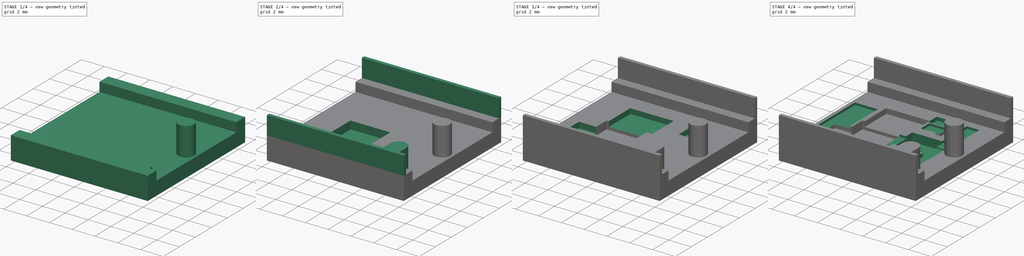
[diagram: build sequence overview — one tinted view per stage of 4, left to right]
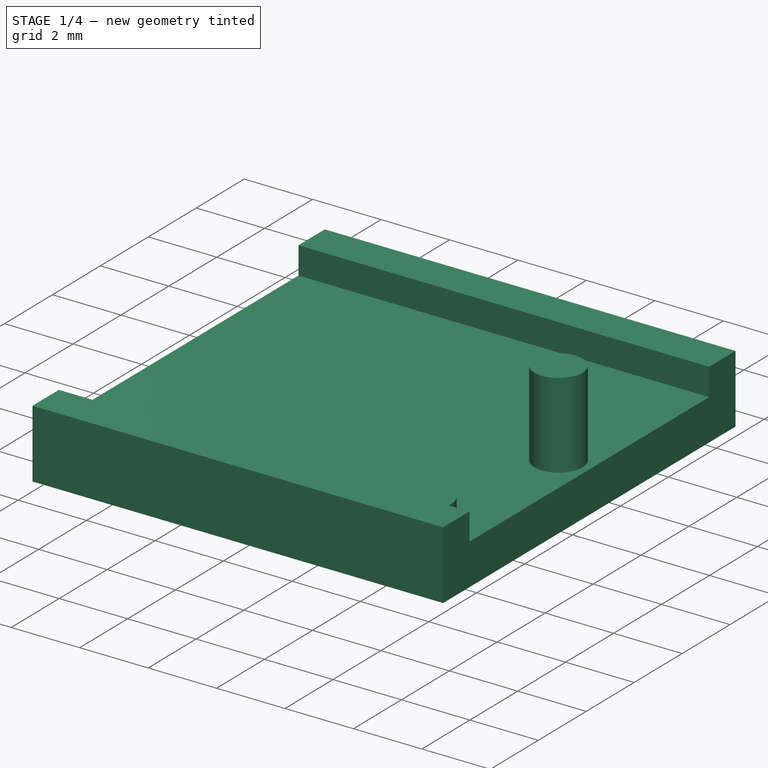
[diagram: stage 1 of 4 — iso view after this stage's code; geometry added in this stage tinted green]
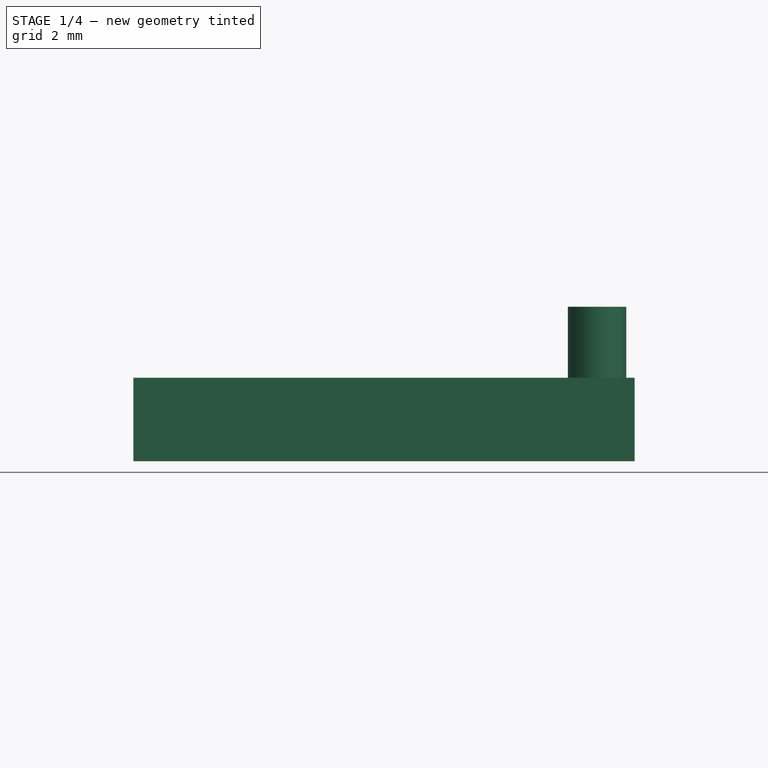
[diagram: stage 1 of 4 — front view after this stage's code; geometry added in this stage tinted green]
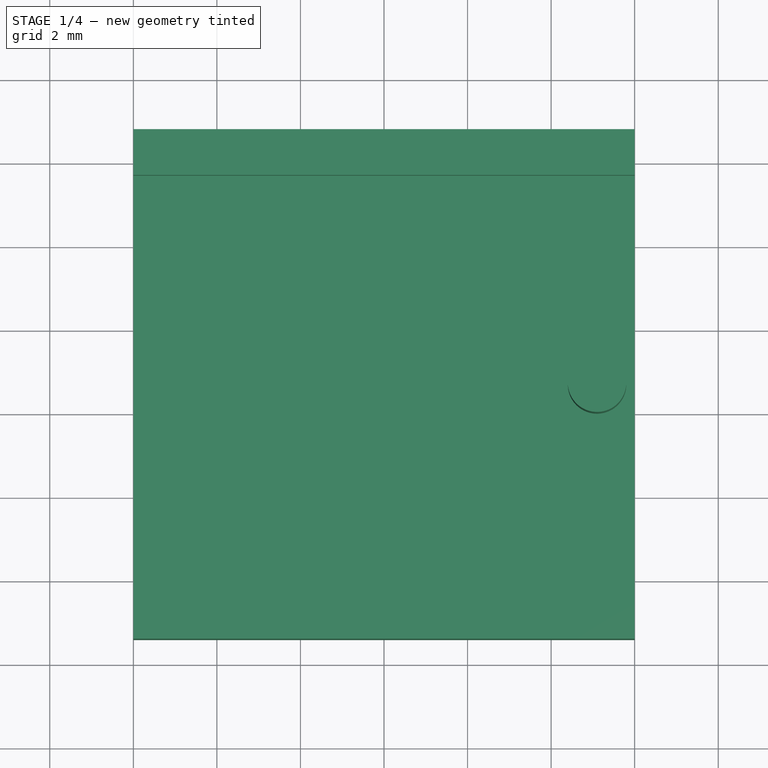
[diagram: stage 1 of 4 — top view after this stage's code; geometry added in this stage tinted green]
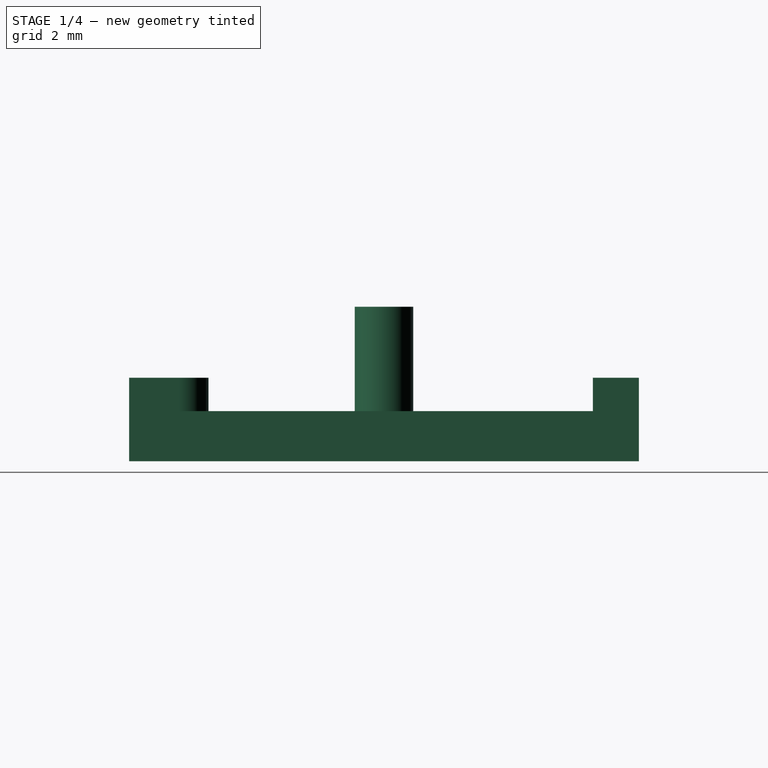
[diagram: stage 1 of 4 — right view after this stage's code; geometry added in this stage tinted green]
FCSTD DOCUMENT  (FreeCAD 0.18R16110 (Git))
Label: case-0.1
License: All rights reserved
LicenseURL: http://en.wikipedia.org/wiki/All_rights_reserved
objects: Part::Feature×41, Sketcher::SketchObject×15, PartDesign::Pocket×9, PartDesign::Pad×5, App::Part×4, PartDesign::Body×1
note: 85 computed .brp shape members not serialized (recipe doc carries the construction recipe); baked Part::Feature solids carry a one-line shape summary decoded from their .brp

FEATURE [Part::Feature] Pcb
  Placement = pos=(-148.5,98.5,0) rot=(0,0,1;0rad)
  shape: bbox 13 x 9.4 x 0.6 mm, 97 faces (baked)
FEATURE [Sketcher::SketchObject] PCB_Sketch
  sketch-geometry (95):
    g0: LineSegment StartX=-115.727 StartY=71.484 StartZ=0 EndX=-115.727 EndY=79.884 EndZ=0
    g1: LineSegment StartX=-102.827 StartY=73.334 StartZ=0 EndX=-102.817 EndY=73.454 EndZ=0
    g2: LineSegment StartX=-102.817 StartY=73.454 StartZ=0 EndX=-102.807 EndY=73.584 EndZ=0
    g3: LineSegment StartX=-102.727 StartY=75.284 StartZ=0 EndX=-102.727 EndY=75.414 EndZ=0
    g4: LineSegment StartX=-102.737 StartY=75.014 StartZ=0 EndX=-102.727 EndY=75.144 EndZ=0
    g5: LineSegment StartX=-103.057 StartY=71.604 StartZ=0 EndX=-103.037 EndY=71.704 EndZ=0
    g6: LineSegment StartX=-102.747 StartY=74.614 StartZ=0 EndX=-102.737 EndY=74.744 EndZ=0
    g7: LineSegment StartX=-102.967 StartY=72.094 StartZ=0 EndX=-102.957 EndY=72.194 EndZ=0
    g8: LineSegment StartX=-102.957 StartY=72.194 StartZ=0 EndX=-102.937 EndY=72.304 EndZ=0
    g9: LineSegment StartX=-103.077 StartY=71.524 StartZ=0 EndX=-103.057 EndY=71.604 EndZ=0
    g10: LineSegment StartX=-103.147 StartY=71.184 StartZ=0 EndX=-103.127 EndY=71.264 EndZ=0
    g11: LineSegment StartX=-102.897 StartY=72.624 StartZ=0 EndX=-102.887 EndY=72.744 EndZ=0
    g12: LineSegment StartX=-102.737 StartY=74.874 StartZ=0 EndX=-102.737 EndY=75.014 EndZ=0
    g13: LineSegment StartX=-103.127 StartY=71.264 StartZ=0 EndX=-103.107 EndY=71.344 EndZ=0
    g14: LineSegment StartX=-102.867 StartY=72.854 StartZ=0 EndX=-102.857 EndY=72.974 EndZ=0
    g15: LineSegment StartX=-103.107 StartY=71.344 StartZ=0 EndX=-103.097 EndY=71.434 EndZ=0
    g16: LineSegment StartX=-102.887 StartY=72.744 StartZ=0 EndX=-102.867 EndY=72.854 EndZ=0
    g17: LineSegment StartX=-102.727 StartY=75.414 StartZ=0 EndX=-102.727 EndY=75.554 EndZ=0
    g18: LineSegment StartX=-102.837 StartY=73.214 StartZ=0 EndX=-102.827 EndY=73.334 EndZ=0
    g19: LineSegment StartX=-102.777 StartY=73.954 StartZ=0 EndX=-102.767 EndY=74.084 EndZ=0
    g20: LineSegment StartX=-103.007 StartY=71.894 StartZ=0 EndX=-102.987 EndY=71.994 EndZ=0
    g21: LineSegment StartX=-102.787 StartY=73.834 StartZ=0 EndX=-102.777 EndY=73.954 EndZ=0
    g22: LineSegment StartX=-102.767 StartY=74.084 StartZ=0 EndX=-102.767 EndY=74.214 EndZ=0
    g23: LineSegment StartX=-102.797 StartY=73.704 StartZ=0 EndX=-102.787 EndY=73.834 EndZ=0
    g24: LineSegment StartX=-102.727 StartY=75.554 StartZ=0 EndX=-102.727 EndY=75.684 EndZ=0
    g25: LineSegment StartX=-102.727 StartY=75.144 StartZ=0 EndX=-102.727 EndY=75.284 EndZ=0
    g26: LineSegment StartX=-102.937 StartY=79.064 StartZ=0 EndX=-102.957 EndY=79.174 EndZ=0
    g27: LineSegment StartX=-102.807 StartY=73.584 StartZ=0 EndX=-102.797 EndY=73.704 EndZ=0
    g28: LineSegment StartX=-103.037 StartY=71.704 StartZ=0 EndX=-103.017 EndY=71.794 EndZ=0
    g29: LineSegment StartX=-102.937 StartY=72.304 StartZ=0 EndX=-102.927 EndY=72.404 EndZ=0
    g30: LineSegment StartX=-102.757 StartY=74.344 StartZ=0 EndX=-102.747 EndY=74.474 EndZ=0
    g31: LineSegment StartX=-103.017 StartY=71.794 StartZ=0 EndX=-103.007 EndY=71.894 EndZ=0
    g32: LineSegment StartX=-102.907 StartY=72.514 StartZ=0 EndX=-102.897 EndY=72.624 EndZ=0
    g33: LineSegment StartX=-102.857 StartY=72.974 StartZ=0 EndX=-102.847 EndY=73.094 EndZ=0
    g34: LineSegment StartX=-102.747 StartY=74.474 StartZ=0 EndX=-102.747 EndY=74.614 EndZ=0
    g35: LineSegment StartX=-102.927 StartY=72.404 StartZ=0 EndX=-102.907 EndY=72.514 EndZ=0
    g36: LineSegment StartX=-102.987 StartY=71.994 StartZ=0 EndX=-102.967 EndY=72.094 EndZ=0
    g37: LineSegment StartX=-102.737 StartY=74.744 StartZ=0 EndX=-102.737 EndY=74.874 EndZ=0
    g38: LineSegment StartX=-102.847 StartY=73.094 StartZ=0 EndX=-102.837 EndY=73.214 EndZ=0
    g39: LineSegment StartX=-102.767 StartY=74.214 StartZ=0 EndX=-102.757 EndY=74.344 EndZ=0
    g40: LineSegment StartX=-103.097 StartY=71.434 StartZ=0 EndX=-103.077 EndY=71.524 EndZ=0
    g41: LineSegment StartX=-103.017 StartY=79.574 StartZ=0 EndX=-103.037 EndY=79.664 EndZ=0
    g42: LineSegment StartX=-103.057 StartY=79.764 StartZ=0 EndX=-103.077 EndY=79.844 EndZ=0
    g43: LineSegment StartX=-103.167 StartY=71.114 StartZ=0 EndX=-103.147 EndY=71.184 EndZ=0
    g44: LineSegment StartX=-103.127 StartY=80.104 StartZ=0 EndX=-103.147 EndY=80.184 EndZ=0
    g45: LineSegment StartX=-103.197 StartY=71.034 StartZ=0 EndX=-103.167 EndY=71.114 EndZ=0
    g46: LineSegment StartX=-102.907 StartY=78.854 StartZ=0 EndX=-102.927 EndY=78.964 EndZ=0
    g47: LineSegment StartX=-102.957 StartY=79.174 StartZ=0 EndX=-102.967 EndY=79.274 EndZ=0
    g48: LineSegment StartX=-102.777 StartY=77.414 StartZ=0 EndX=-102.787 EndY=77.534 EndZ=0
    g49: LineSegment StartX=-103.227 StartY=70.984 StartZ=0 EndX=-103.197 EndY=71.034 EndZ=0
    g50: LineSegment StartX=-102.737 StartY=76.624 StartZ=0 EndX=-102.747 EndY=76.754 EndZ=0
    g51: LineSegment StartX=-102.727 StartY=75.814 StartZ=0 EndX=-102.727 EndY=75.954 EndZ=0
    g52: LineSegment StartX=-103.197 StartY=80.334 StartZ=0 EndX=-103.227 EndY=80.384 EndZ=0
    g53: LineSegment StartX=-102.807 StartY=77.784 StartZ=0 EndX=-102.817 EndY=77.914 EndZ=0
    g54: LineSegment StartX=-102.727 StartY=76.084 StartZ=0 EndX=-102.727 EndY=76.224 EndZ=0
    g55: LineSegment StartX=-102.897 StartY=78.744 StartZ=0 EndX=-102.907 EndY=78.854 EndZ=0
    g56: LineSegment StartX=-102.767 StartY=77.284 StartZ=0 EndX=-102.777 EndY=77.414 EndZ=0
    g57: LineSegment StartX=-103.037 StartY=79.664 StartZ=0 EndX=-103.057 EndY=79.764 EndZ=0
    g58: LineSegment StartX=-102.887 StartY=78.624 StartZ=0 EndX=-102.897 EndY=78.744 EndZ=0
    g59: LineSegment StartX=-102.757 StartY=77.024 StartZ=0 EndX=-102.767 EndY=77.154 EndZ=0
    g60: LineSegment StartX=-103.167 StartY=80.254 StartZ=0 EndX=-103.197 EndY=80.334 EndZ=0
    g61: LineSegment StartX=-102.837 StartY=78.154 StartZ=0 EndX=-102.847 EndY=78.274 EndZ=0
    g62: LineSegment StartX=-102.727 StartY=75.954 StartZ=0 EndX=-102.727 EndY=76.084 EndZ=0
    g63: LineSegment StartX=-102.747 StartY=76.754 StartZ=0 EndX=-102.747 EndY=76.894 EndZ=0
    g64: LineSegment StartX=-102.747 StartY=76.894 StartZ=0 EndX=-102.757 EndY=77.024 EndZ=0
    g65: LineSegment StartX=-103.147 StartY=80.184 StartZ=0 EndX=-103.167 EndY=80.254 EndZ=0
    g66: LineSegment StartX=-102.767 StartY=77.154 StartZ=0 EndX=-102.767 EndY=77.284 EndZ=0
    g67: LineSegment StartX=-103.097 StartY=79.934 StartZ=0 EndX=-103.107 EndY=80.024 EndZ=0
    g68: LineSegment StartX=-102.727 StartY=75.684 StartZ=0 EndX=-102.727 EndY=75.814 EndZ=0
    g69: LineSegment StartX=-102.967 StartY=79.274 StartZ=0 EndX=-102.987 EndY=79.374 EndZ=0
    g70: LineSegment StartX=-102.867 StartY=78.514 StartZ=0 EndX=-102.887 EndY=78.624 EndZ=0
    g71: LineSegment StartX=-102.827 StartY=78.034 StartZ=0 EndX=-102.837 EndY=78.154 EndZ=0
    g72: LineSegment StartX=-102.857 StartY=78.394 StartZ=0 EndX=-102.867 EndY=78.514 EndZ=0
    g73: LineSegment StartX=-102.817 StartY=77.914 StartZ=0 EndX=-102.827 EndY=78.034 EndZ=0
    g74: LineSegment StartX=-102.727 StartY=76.224 StartZ=0 EndX=-102.737 EndY=76.354 EndZ=0
    g75: LineSegment StartX=-103.077 StartY=79.844 StartZ=0 EndX=-103.097 EndY=79.934 EndZ=0
    g76: LineSegment StartX=-103.107 StartY=80.024 StartZ=0 EndX=-103.127 EndY=80.104 EndZ=0
    g77: LineSegment StartX=-103.007 StartY=79.474 StartZ=0 EndX=-103.017 EndY=79.574 EndZ=0
    g78: LineSegment StartX=-102.987 StartY=79.374 StartZ=0 EndX=-103.007 EndY=79.474 EndZ=0
    g79: LineSegment StartX=-102.737 StartY=76.494 StartZ=0 EndX=-102.737 EndY=76.624 EndZ=0
    g80: LineSegment StartX=-102.787 StartY=77.534 StartZ=0 EndX=-102.797 EndY=77.664 EndZ=0
    g81: LineSegment StartX=-102.797 StartY=77.664 StartZ=0 EndX=-102.807 EndY=77.784 EndZ=0
    g82: LineSegment StartX=-102.737 StartY=76.354 StartZ=0 EndX=-102.737 EndY=76.494 EndZ=0
    g83: LineSegment StartX=-102.927 StartY=78.964 StartZ=0 EndX=-102.937 EndY=79.064 EndZ=0
    g84: LineSegment StartX=-102.847 StartY=78.274 StartZ=0 EndX=-102.857 EndY=78.394 EndZ=0
    g85: LineSegment StartX=-115.227 StartY=80.384 StartZ=0 EndX=-103.227 EndY=80.384 EndZ=0
    g86: LineSegment StartX=-104.252 StartY=70.984 StartZ=0 EndX=-103.227 EndY=70.984 EndZ=0
    g87: LineSegment StartX=-103.427 StartY=76.534 StartZ=0 EndX=-103.427 EndY=74.834 EndZ=0
    g88: LineSegment StartX=-115.227 StartY=70.984 StartZ=0 EndX=-105.852 EndY=70.984 EndZ=0
    g89: ArcOfCircle CenterX=-115.227 CenterY=71.484 CenterZ=0 NormalX=0 NormalY=0 NormalZ=1 AngleXU=0 Radius=0.5 StartAngle=3.14159 EndAngle=4.71239
    g90: ArcOfCircle CenterX=-104.027 CenterY=74.834 CenterZ=0 NormalX=0 NormalY=0 NormalZ=1 AngleXU=0 Radius=0.6 StartAngle=3.14159 EndAngle=6.28319
    g91: ArcOfCircle CenterX=-104.027 CenterY=76.534 CenterZ=0 NormalX=0 NormalY=0 NormalZ=1 AngleXU=0 Radius=0.6 StartAngle=0 EndAngle=3.14159
    g92: ArcOfCircle CenterX=-104.627 CenterY=75.684 CenterZ=0 NormalX=0 NormalY=0 NormalZ=1 AngleXU=0 Radius=0.85 StartAngle=1.5708 EndAngle=4.71239
    g93: ArcOfCircle CenterX=-105.052 CenterY=70.984 CenterZ=0 NormalX=0 NormalY=0 NormalZ=1 AngleXU=0 Radius=0.8 StartAngle=0 EndAngle=3.14159
    g94: ArcOfCircle CenterX=-115.227 CenterY=79.884 CenterZ=0 NormalX=0 NormalY=0 NormalZ=1 AngleXU=0 Radius=0.5 StartAngle=1.5708 EndAngle=3.14159
  constraints (94):
    c: Coincident(g0,g89)
    c: Coincident(g0,g94)
    c: Coincident(g89,g88)
    c: Coincident(g94,g85)
    c: Coincident(g88,g93)
    c: Coincident(g90,g92)
    c: Coincident(g92,g91)
    c: Coincident(g86,g93)
    c: Coincident(g90,g87)
    c: Coincident(g87,g91)
    c: Coincident(g49,g86)
    c: Coincident(g85,g52)
    c: Coincident(g45,g49)
    c: Coincident(g52,g60)
    c: Coincident(g43,g45)
    c: Coincident(g60,g65)
    c: Coincident(g43,g10)
    c: Coincident(g44,g65)
    c: Coincident(g10,g13)
    c: Coincident(g44,g76)
    c: Coincident(g15,g13)
    c: Coincident(g40,g15)
    c: Coincident(g67,g75)
    c: Coincident(g67,g76)
    c: Coincident(g9,g40)
    c: Coincident(g75,g42)
    c: Coincident(g9,g5)
    c: Coincident(g57,g42)
    c: Coincident(g28,g5)
    c: Coincident(g57,g41)
    c: Coincident(g28,g31)
    c: Coincident(g20,g31)
    c: Coincident(g78,g77)
    c: Coincident(g77,g41)
    c: Coincident(g36,g20)
    c: Coincident(g78,g69)
    c: Coincident(g36,g7)
    c: Coincident(g47,g69)
    c: Coincident(g7,g8)
    c: Coincident(g47,g26)
    c: Coincident(g8,g29)
    c: Coincident(g83,g26)
    c: Coincident(g29,g35)
    c: Coincident(g46,g83)
    c: Coincident(g32,g35)
    c: Coincident(g46,g55)
    c: Coincident(g32,g11)
    c: Coincident(g16,g11)
    c: Coincident(g58,g70)
    c: Coincident(g55,g58)
    c: Coincident(g16,g14)
    c: Coincident(g14,g33)
    c: Coincident(g38,g33)
    c: Coincident(g72,g84)
    c: Coincident(g84,g61)
    c: Coincident(g38,g18)
    c: Coincident(g71,g61)
    c: Coincident(g1,g18)
    c: Coincident(g2,g1)
    c: Coincident(g73,g53)
    c: Coincident(g71,g73)
    c: Coincident(g27,g2)
    c: Coincident(g53,g81)
    c: Coincident(g23,g27)
    c: Coincident(g21,g23)
    c: Coincident(g48,g80)
    c: Coincident(g81,g80)
    c: Coincident(g19,g21)
    c: Coincident(g56,g48)
    c: Coincident(g19,g22)
    c: Coincident(g22,g39)
    c: Coincident(g39,g30)
    c: Coincident(g59,g64)
    c: Coincident(g66,g59)
    c: Coincident(g66,g56)
    c: Coincident(g34,g30)
    c: Coincident(g34,g6)
    c: Coincident(g63,g50)
    c: Coincident(g63,g64)
    c: Coincident(g37,g6)
    c: Coincident(g37,g12)
    c: Coincident(g4,g12)
    c: Coincident(g25,g4)
    c: Coincident(g25,g3)
    c: Coincident(g3,g17)
    c: Coincident(g24,g17)
    c: Coincident(g68,g24)
    c: Coincident(g51,g68)
    c: Coincident(g51,g62)
    c: Coincident(g62,g54)
    c: Coincident(g74,g54)
    c: Coincident(g82,g74)
    c: Coincident(g79,g82)
    c: Coincident(g79,g50)
FEATURE [App::Part] Board_Geoms
  Group = -> [Pcb,PCB_Sketch]
  Origin = -> Origin
FEATURE [Part::Feature] Shape  label="U2_X2SON-DQN0004A_5DC58CFF"
  Placement = pos=(-112.97,72.45,-0.6) rot=(0.57735,0.57735,-0.57735;4.18879rad)
  shape: bbox 1 x 1 x 0.36 mm, 131 faces, 6 solids (baked)
FEATURE [Part::Feature] Shape001  label="U1_X2SON-DQN0004A_5F5B4CDF"
  Placement = pos=(-108.15,73.094,-0.6) rot=(-0.57735,0.57735,-0.57735;2.0944rad)
  shape: bbox 1 x 1 x 0.36 mm, 131 faces, 6 solids (baked)
FEATURE [Part::Feature] Shape002  label="U10_LED-UHD1110-FKA_5DC5D065"
  Placement = pos=(-106.927,78.23,-0.6) rot=(-1,0,0;1.5708rad)
  shape: bbox 1 x 1 x 0.7 mm, 67 faces, 9 solids (baked)
FEATURE [Part::Feature] Shape003  label="U4_(Unsaved)_5DEEC34D"
  Placement = pos=(-111.102,77.739,-0.6) rot=(1,0,0;3.14159rad)
  shape: bbox 3 x 2 x 0.45 mm, 6 faces (baked)
FEATURE [Part::Feature] Shape004  label="Q3_TRANS_RV1C001Z_ROM_5DF3B6C3"
  Placement = pos=(-108.525,79.53,-0.6) rot=(0,1,0;3.14159rad)
  shape: bbox 0.812 x 0.61 x 0.387 mm, 27 faces, 5 solids (baked)
FEATURE [Part::Feature] Shape005  label="Q1_TRANS_RV1C001Z_ROM_5F9A5F46"
  Placement = pos=(-106,75.525,-0.6) rot=(0.707107,0.707107,0;3.14159rad)
  shape: bbox 0.61 x 0.812 x 0.387 mm, 27 faces, 5 solids (baked)
FEATURE [Part::Feature] Shape006  label="Q2_TRANS_RV1C001Z_ROM_5DF9400C"
  Placement = pos=(-106,74.35,-0.6) rot=(0.707107,0.707107,0;3.14159rad)
  shape: bbox 0.61 x 0.812 x 0.387 mm, 27 faces, 5 solids (baked)
FEATURE [Part::Feature] Shape007  label="C4_C_0201_0603Metric_5FB65D3D"
  Placement = pos=(-111.35,73.03,-0.6) rot=(1,0,0;3.14159rad)
  shape: bbox 0.6 x 0.3 x 0.3 mm, 28 faces (baked)
FEATURE [Part::Feature] Shape008  label="U3_SOT_323_SC_70_5FC7136C"
  Placement = pos=(-107.8,75.65,-0.6) rot=(-0.707107,0.707107,0;3.14159rad)
  shape: bbox 2 x 2 x 1.05 mm, 76 faces (baked)
FEATURE [Part::Feature] Shape009  label="C15_C_0201_0603Metric_5FB66156"
  Placement = pos=(-109.95,73.03,-0.6) rot=(1,0,0;3.14159rad)
  shape: bbox 0.6 x 0.3 x 0.3 mm, 28 faces (baked)
FEATURE [Part::Feature] Shape010  label="XTAL1_ECS-.327-12.5-1210-TR_5DF79E47"
  Placement = pos=(-113.852,74.2075,-0.6) rot=(-0.57735,-0.57735,0.57735;2.0944rad)
  shape: bbox 1 x 1.2 x 0.35 mm, 95 faces, 5 solids (baked)
FEATURE [Part::Feature] Shape011  label="IC1_(Unsaved)_5F5BD09C"
  Placement = pos=(-112.779,76.09,-0.6) rot=(-1,0,0;1.5708rad)
  shape: bbox 2.656 x 2.422 x 0.352 mm, 6 faces (baked)
FEATURE [Part::Feature] Shape012  label="C7_C_0201_0603Metric_5DDDC17D"
  Placement = pos=(-109.95,72.33,-0.6) rot=(0,1,0;3.14159rad)
  shape: bbox 0.6 x 0.3 x 0.3 mm, 28 faces (baked)
FEATURE [Part::Feature] Shape013  label="R1_R_0201_5DC5A0F0"
  Placement = pos=(-113.95,76.23,-0.6) rot=(0,1,0;3.14159rad)
  shape: bbox 0.63 x 0.33 x 0.23 mm, 28 faces (baked)
FEATURE [Part::Feature] Shape014  label="C14_C_0201_0603Metric_5F9A3241"
  Placement = pos=(-115.05,73.63,-0.6) rot=(0.707107,0.707107,0;3.14159rad)
  shape: bbox 0.3 x 0.6 x 0.3 mm, 28 faces (baked)
FEATURE [Part::Feature] Shape015  label="C13_C_0201_0603Metric_5DF97F66"
  Placement = pos=(-115.04,75.03,-0.6) rot=(0.707107,0.707107,0;3.14159rad)
  shape: bbox 0.3 x 0.6 x 0.3 mm, 28 faces (baked)
FEATURE [Part::Feature] Shape016  label="R18_R_0201_5DEE54FD"
  Placement = pos=(-105.95,77.33,-0.6) rot=(0.707107,0.707107,0;3.14159rad)
  shape: bbox 0.33 x 0.63 x 0.23 mm, 28 faces (baked)
FEATURE [Part::Feature] Shape017  label="R17_R_0201_5DF3BC3D"
  Placement = pos=(-105.95,78.73,-0.6) rot=(-0.707107,0.707107,0;3.14159rad)
  shape: bbox 0.33 x 0.63 x 0.23 mm, 28 faces (baked)
FEATURE [Part::Feature] Shape018  label="R16_R_0201_5DF3BCFD"
  Placement = pos=(-107.95,78.33,-0.6) rot=(-0.707107,0.707107,0;3.14159rad)
  shape: bbox 0.33 x 0.63 x 0.23 mm, 28 faces (baked)
FEATURE [Part::Feature] Shape019  label="R12_R_0201_5DF3BC6D"
  Placement = pos=(-114.012,77.63,-0.6) rot=(0,1,0;3.14159rad)
  shape: bbox 0.63 x 0.33 x 0.23 mm, 28 faces (baked)
FEATURE [Part::Feature] Shape020  label="R11_R_0201_5DF3BC9D"
  Placement = pos=(-114.012,78.33,-0.6) rot=(0,1,0;3.14159rad)
  shape: bbox 0.63 x 0.33 x 0.23 mm, 28 faces (baked)
FEATURE [Part::Feature] Shape021  label="R9_R_0201_5DF3BCCD"
  Placement = pos=(-114.012,76.93,-0.6) rot=(0,1,0;3.14159rad)
  shape: bbox 0.63 x 0.33 x 0.23 mm, 28 faces (baked)
FEATURE [Part::Feature] Shape022  label="R5_R_0201_5F5B4C73"
  Placement = pos=(-106.95,71.98,-0.6) rot=(1,0,0;3.14159rad)
  shape: bbox 0.63 x 0.33 x 0.23 mm, 28 faces (baked)
FEATURE [Part::Feature] Shape023  label="R2_R_0201_5DDDC491"
  Placement = pos=(-109.95,71.63,-0.6) rot=(0,1,0;3.14159rad)
  shape: bbox 0.63 x 0.33 x 0.23 mm, 28 faces (baked)
FEATURE [Part::Feature] Shape024  label="D7_L_0201_0603Metric_5DC58C89"
  Placement = pos=(-114.982,78.085,-0.6) rot=(0.707107,0.707107,0;3.14159rad)
  shape: bbox 0.3 x 0.6 x 0.3 mm, 28 faces (baked)
FEATURE [Part::Feature] Shape025  label="D6_L_0201_0603Metric_5DF818F3"
  Placement = pos=(-114.972,76.465,-0.6) rot=(-0.707107,0.707107,0;3.14159rad)
  shape: bbox 0.3 x 0.6 x 0.3 mm, 28 faces (baked)
FEATURE [Part::Feature] Shape026  label="D5_L_0201_0603Metric_5F5BD1CB"
  Placement = pos=(-114.95,72.365,-0.6) rot=(-0.707107,0.707107,0;3.14159rad)
  shape: bbox 0.3 x 0.6 x 0.3 mm, 28 faces (baked)
FEATURE [Part::Feature] Shape027  label="D4_L_0201_0603Metric_5DEE9B1D"
  Placement = pos=(-106,72.18,-0.6) rot=(0.707107,0.707107,0;3.14159rad)
  shape: bbox 0.3 x 0.6 x 0.3 mm, 28 faces (baked)
FEATURE [Part::Feature] Shape028  label="D3_L_0201_0603Metric_5DC59080"
  Placement = pos=(-105.95,76.35,-0.6) rot=(0,1,0;3.14159rad)
  shape: bbox 0.6 x 0.3 x 0.3 mm, 28 faces (baked)
FEATURE [Part::Feature] Shape029  label="D2_L_0201_0603Metric_5DC59071"
  Placement = pos=(-106,73.23,-0.6) rot=(-0.707107,0.707107,0;3.14159rad)
  shape: bbox 0.3 x 0.6 x 0.3 mm, 28 faces (baked)
FEATURE [Part::Feature] Shape030  label="D1_L_0201_0603Metric_5F5BBC78"
  Placement = pos=(-105.95,79.68,-0.6) rot=(0,1,0;3.14159rad)
  shape: bbox 0.6 x 0.3 x 0.3 mm, 28 faces (baked)
FEATURE [Part::Feature] Shape031  label="C11_C_0201_0603Metric_5F5B4CA3"
  Placement = pos=(-108.35,71.98,-0.6) rot=(1,0,0;3.14159rad)
  shape: bbox 0.6 x 0.3 x 0.3 mm, 28 faces (baked)
FEATURE [Part::Feature] Shape032  label="C10_C_0201_0603Metric_5DEFCC06"
  Placement = pos=(-109.5,75.58,-0.6) rot=(0.707107,0.707107,0;3.14159rad)
  shape: bbox 0.3 x 0.6 x 0.3 mm, 28 faces (baked)
FEATURE [Part::Feature] Shape033  label="C9_C_0201_0603Metric_5DD5522E"
  Placement = pos=(-111.35,72.33,-0.6) rot=(1,0,0;3.14159rad)
  shape: bbox 0.6 x 0.3 x 0.3 mm, 28 faces (baked)
FEATURE [Part::Feature] Shape034  label="C8_C_0201_0603Metric_5DEFCCB7"
  Placement = pos=(-109.5,74.18,-0.6) rot=(-0.707107,0.707107,0;3.14159rad)
  shape: bbox 0.3 x 0.6 x 0.3 mm, 28 faces (baked)
FEATURE [Part::Feature] Shape035  label="C6_C_0201_0603Metric_5DEFCBD0"
  Placement = pos=(-111.35,71.63,-0.6) rot=(1,0,0;3.14159rad)
  shape: bbox 0.6 x 0.3 x 0.3 mm, 28 faces (baked)
FEATURE [Part::Feature] Shape036  label="C5_C_0201_0603Metric_5DF7B985"
  Placement = pos=(-108.65,78.33,-0.6) rot=(-0.707107,0.707107,0;3.14159rad)
  shape: bbox 0.3 x 0.6 x 0.3 mm, 28 faces (baked)
FEATURE [Part::Feature] Shape037  label="C3_C_0201_0603Metric_5DEFCE4F"
  Placement = pos=(-113.95,75.53,-0.6) rot=(0,1,0;3.14159rad)
  shape: bbox 0.6 x 0.3 x 0.3 mm, 28 faces (baked)
FEATURE [Part::Feature] Shape038  label="C2_C_0201_0603Metric_5F5B4C43"
  Placement = pos=(-106.85,73.03,-0.6) rot=(0.707107,0.707107,0;3.14159rad)
  shape: bbox 0.3 x 0.6 x 0.3 mm, 28 faces (baked)
FEATURE [Part::Feature] Shape039  label="C1_C_0201_0603Metric_5DDDBFF4"
  Placement = pos=(-114.3,72.48,-0.6) rot=(-0.707107,0.707107,0;3.14159rad)
  shape: bbox 0.3 x 0.6 x 0.3 mm, 28 faces (baked)
FEATURE [App::Part] Bot
  Group = -> [Shape,Shape001,Shape002,Shape003,Shape004,Shape005,Shape006,Shape007,Shape008,Shape009,Shape010,Shape011,Shape012,Shape013,Shape014,Shape015,Shape016,Shape017,Shape018,Shape019,Shape020,Shape021,Shape022,Shape023,Shape024,Shape025,Shape026,Shape027,Shape028,Shape029,Shape030,Shape031,Shape032,Shape033,Shape034,Shape035,Shape036,Shape037,Shape038,Shape039]
  Origin = -> Origin004
FEATURE [App::Part] Step_Models
  Group = -> [Bot]
  Origin = -> Origin002
FEATURE [App::Part] Board  label="qomu-board"
  Group = -> [Board_Geoms,Step_Models]
  Origin = -> Origin001
  Placement = pos=(115.7,-71,0) rot=(0,0,1;0rad)
FEATURE [Sketcher::SketchObject] Sketch017  label="Case Body Sketch"
  MapMode = 5
  Support = -> [XY_Plane015]
  sketch-geometry (4):
    g0: LineSegment StartX=0 StartY=10.8 StartZ=0 EndX=12 EndY=10.8 EndZ=0
    g1: LineSegment StartX=12 StartY=10.8 StartZ=0 EndX=12 EndY=-1.4 EndZ=0
    g2: LineSegment StartX=12 StartY=-1.4 StartZ=0 EndX=0 EndY=-1.4 EndZ=0
    g3: LineSegment StartX=0 StartY=-1.4 StartZ=0 EndX=0 EndY=10.8 EndZ=0
  constraints (12):
    c: Coincident(g0,g1)
    c: Coincident(g1,g2)
    c: Coincident(g2,g3)
    c: Coincident(g3,g0)
    c: Horizontal(g0)
    c: Horizontal(g2)
    c: Vertical(g1)
    c: Vertical(g3)
    c: DistanceX(g0,g0) = 12
    c: DistanceY(g3,g3) = 12.2
    c: DistanceX(g-1,g2) = 0
    c: DistanceY(g2,g-1) = 1.4
FEATURE [PartDesign::Pad] Pad013  label="Case Body Pad"
  Length = 2
  Length2 = 100
  Profile = -> Sketch017
  Reversed = true
  Type = 0
FEATURE [Sketcher::SketchObject] Sketch018  label="PCB Pocket Sketch"
  MapMode = 5
  Support = -> [Pad013]
  sketch-geometry (4):
    g0: LineSegment StartX=0 StartY=9.7 StartZ=0 EndX=13 EndY=9.7 EndZ=0
    g1: LineSegment StartX=13 StartY=9.7 StartZ=0 EndX=13 EndY=-0.3 EndZ=0
    g2: LineSegment StartX=13 StartY=-0.3 StartZ=0 EndX=0 EndY=-0.3 EndZ=0
    g3: LineSegment StartX=0 StartY=-0.3 StartZ=0 EndX=0 EndY=9.7 EndZ=0
  constraints (12):
    c: Coincident(g0,g1)
    c: Coincident(g1,g2)
    c: Coincident(g2,g3)
    c: Coincident(g3,g0)
    c: Horizontal(g0)
    c: Horizontal(g2)
    c: Vertical(g1)
    c: Vertical(g3)
    c: DistanceX(g0,g0) = 13
    c: DistanceY(g1,g1) = 10
    c: DistanceX(g-1,g2) = 0
    c: DistanceY(g2,g-1) = 0.3
FEATURE [PartDesign::Pocket] Pocket001  label="PCB Pocket"
  BaseFeature = -> Pad013
  Length = 0.8
  Length2 = 100
  Profile = -> Sketch018
  Type = 0
FEATURE [Sketcher::SketchObject] Sketch019  label="Tab Sketch"
  MapMode = 5
  Placement = pos=(0,0,-0.8) rot=(0,0,1;0rad)
  Support = -> [Pocket001]
  sketch-geometry (1):
    g0: Circle CenterX=11.1 CenterY=4.7 CenterZ=0 NormalX=0 NormalY=0 NormalZ=1 AngleXU=0 Radius=0.7
  constraints (3):
    c: Radius(g0) = 0.7
    c: DistanceX(g-1,g0) = 11.1
    c: DistanceY(g-1,g0) = 4.7
FEATURE [PartDesign::Pad] Pad014  label="Tab Pad"
  BaseFeature = -> Pocket001
  Length = 2.5
  Length2 = 100
  Profile = -> Sketch019
  Type = 0
FEATURE [Sketcher::SketchObject] Sketch020  label="Alignment Bump Sketch"
  MapMode = 5
  Placement = pos=(0,0,-0.8) rot=(0,0,1;0rad)
  Support = -> [Pad014]
  sketch-geometry (4):
    g0: ArcOfCircle CenterX=10.7 CenterY=-0.2 CenterZ=0 NormalX=0 NormalY=0 NormalZ=1 AngleXU=0 Radius=0.7 StartAngle=0 EndAngle=3.14159
    g1: LineSegment StartX=10 StartY=-0.3 StartZ=0 EndX=10 EndY=-0.2 EndZ=0
    g2: LineSegment StartX=11.4 StartY=-0.2 StartZ=0 EndX=11.4 EndY=-0.3 EndZ=0
    g3: LineSegment StartX=10 StartY=-0.3 StartZ=0 EndX=11.4 EndY=-0.3 EndZ=0
  constraints (13):
    c: Vertical(g2)
    c: Vertical(g1)
    c: Coincident(g1,g0)
    c: Coincident(g2,g0)
    c: DistanceX(g0,g0) = 1.4
    c: DistanceY(g2,g2) = 0.1
    c: Equal(g1,g2)
    c: Coincident(g3,g1)
    c: Coincident(g3,g2)
    c: DistanceX(g-1,g1) = 10
    c: Horizontal(g3)
    c: Angle(g0) = 3.14159
    c: DistanceY(g1,g-1) = 0.3
FEATURE [PartDesign::Pad] Pad015  label="Alignment Bunp Pad"
  BaseFeature = -> Pad014
  Length = 0.8
  Length2 = 100
  Profile = -> Sketch020
  Type = 0
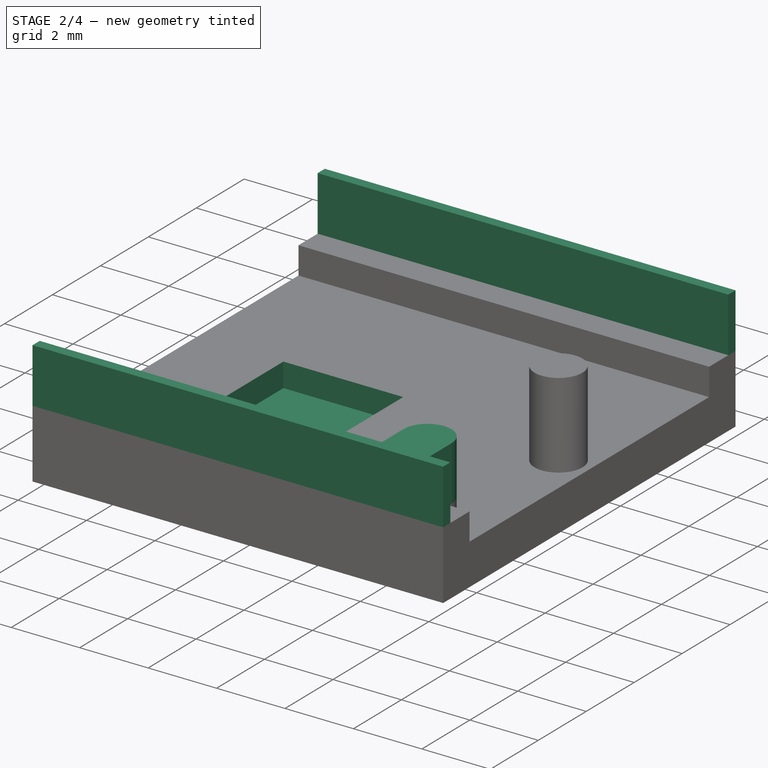
[diagram: stage 2 of 4 — iso view after this stage's code; geometry added in this stage tinted green]
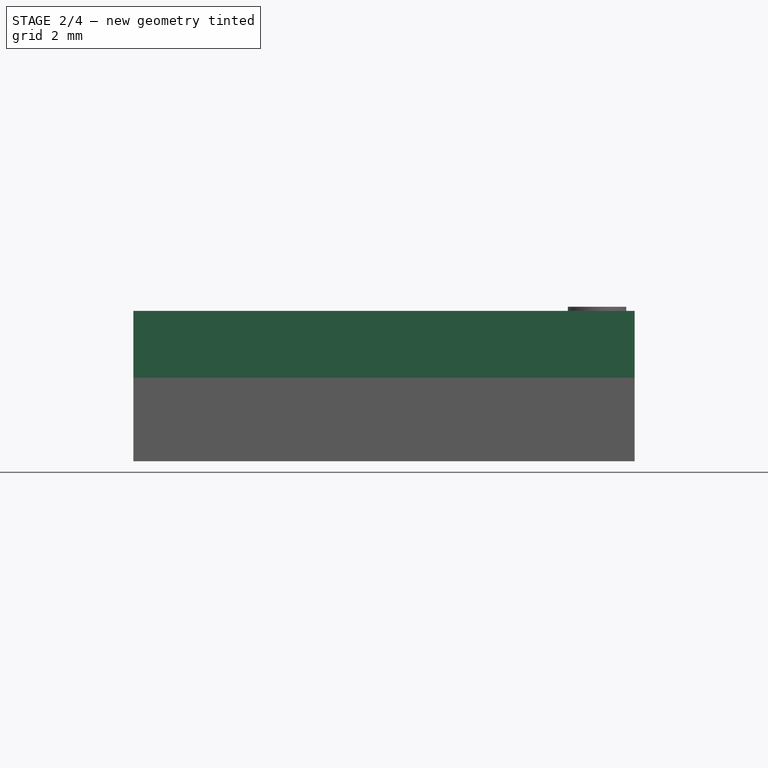
[diagram: stage 2 of 4 — front view after this stage's code; geometry added in this stage tinted green]
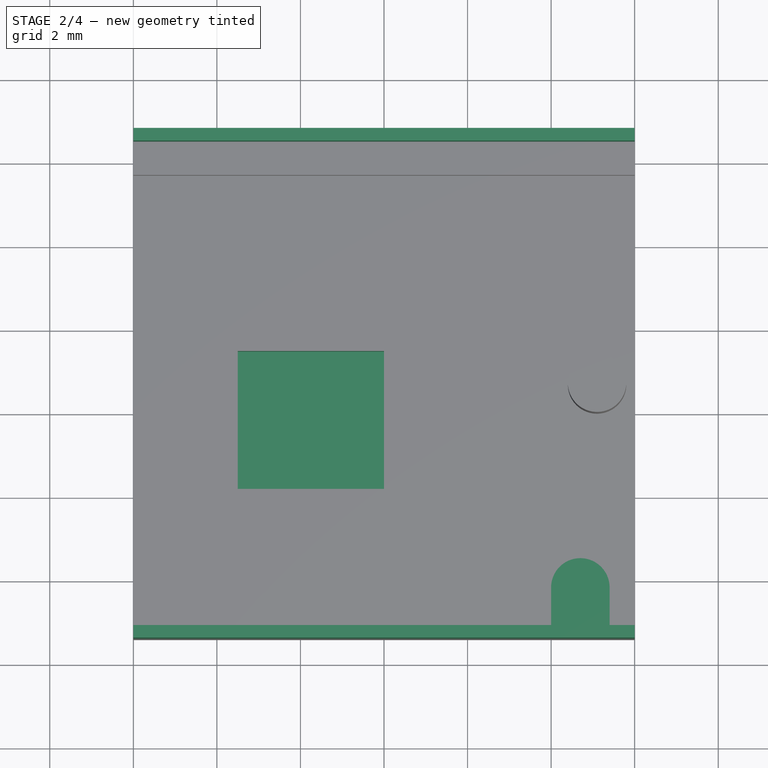
[diagram: stage 2 of 4 — top view after this stage's code; geometry added in this stage tinted green]
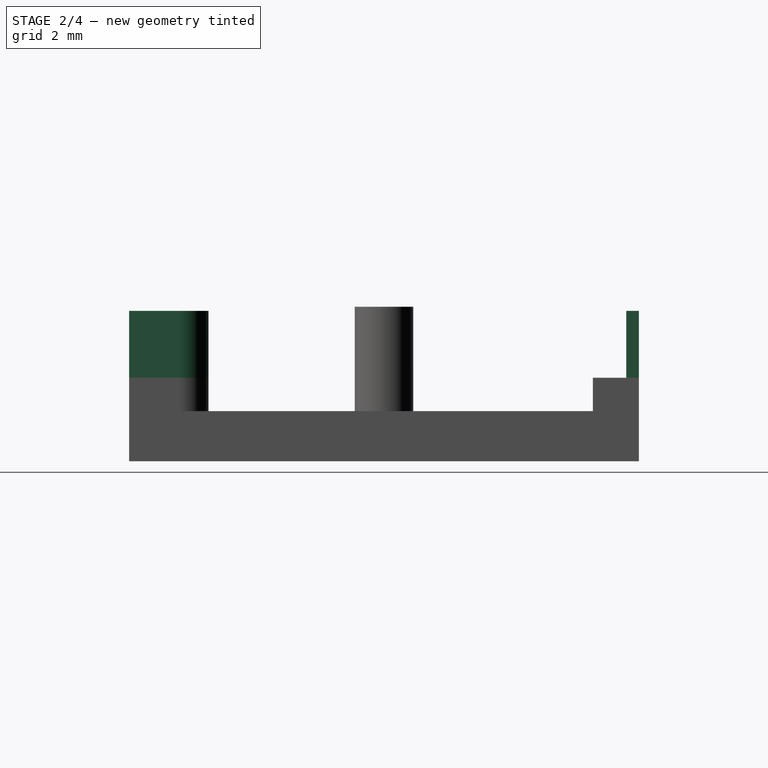
[diagram: stage 2 of 4 — right view after this stage's code; geometry added in this stage tinted green]
FEATURE [Sketcher::SketchObject] Sketch021  label="Guiding Slot Sketch Top"
  MapMode = 5
  Support = -> [Pad015]
  sketch-geometry (4):
    g0: LineSegment StartX=0 StartY=10.8 StartZ=0 EndX=12 EndY=10.8 EndZ=0
    g1: LineSegment StartX=12 StartY=10.8 StartZ=0 EndX=12 EndY=10.5 EndZ=0
    g2: LineSegment StartX=12 StartY=10.5 StartZ=0 EndX=0 EndY=10.5 EndZ=0
    g3: LineSegment StartX=0 StartY=10.5 StartZ=0 EndX=0 EndY=10.8 EndZ=0
  constraints (12):
    c: Coincident(g0,g1)
    c: Coincident(g1,g2)
    c: Coincident(g2,g3)
    c: Coincident(g3,g0)
    c: Horizontal(g0)
    c: Horizontal(g2)
    c: Vertical(g1)
    c: Vertical(g3)
    c: DistanceX(g0,g0) = 12
    c: DistanceY(g1,g1) = 0.3
    c: DistanceX(g-1,g0) = 0
    c: DistanceY(g-1,g0) = 10.8
FEATURE [PartDesign::Pad] Pad016  label="Guiding Slot Pad Top"
  BaseFeature = -> Pad015
  Length = 1.6
  Length2 = 100
  Profile = -> Sketch021
  Type = 0
FEATURE [Sketcher::SketchObject] Sketch022  label="Guiding Slot Sketch Bottom"
  MapMode = 5
  Support = -> [Pad016]
  sketch-geometry (8):
    g0: LineSegment StartX=0 StartY=-1.4 StartZ=0 EndX=12 EndY=-1.4 EndZ=0
    g1: LineSegment StartX=12 StartY=-1.1 StartZ=0 EndX=12 EndY=-1.4 EndZ=0
    g2: LineSegment StartX=11.4 StartY=-1.1 StartZ=0 EndX=12 EndY=-1.1 EndZ=0
    g3: LineSegment StartX=11.4 StartY=-1.1 StartZ=0 EndX=11.4 EndY=-0.2 EndZ=0
    g4: LineSegment StartX=10 StartY=-0.2 StartZ=0 EndX=10 EndY=-1.1 EndZ=0
    g5: LineSegment StartX=10 StartY=-1.1 StartZ=0 EndX=0 EndY=-1.1 EndZ=0
    g6: LineSegment StartX=0 StartY=-1.1 StartZ=0 EndX=0 EndY=-1.4 EndZ=0
    g7: ArcOfCircle CenterX=10.7 CenterY=-0.2 CenterZ=0 NormalX=0 NormalY=0 NormalZ=1 AngleXU=0 Radius=0.7 StartAngle=0 EndAngle=3.14159
  constraints (26):
    c: PointOnObject(g0,g-2)
    c: Horizontal(g0)
    c: Coincident(g1,g0)
    c: Vertical(g1)
    c: Coincident(g2,g1)
    c: Coincident(g3,g2)
    c: Vertical(g4)
    c: Coincident(g5,g4)
    c: PointOnObject(g5,g-2)
    c: Horizontal(g5)
    c: Coincident(g6,g0)
    c: Vertical(g6)
    c: DistanceY(g1,g1) = 0.3
    c: Coincident(g6,g5)
    c: DistanceY(g0,g-1) = 1.4
    c: DistanceY(g6,g6) = 0.3
    c: Horizontal(g2)
    c: Vertical(g3)
    c: DistanceX(g5,g5) = 10
    c: DistanceX(g0,g0) = 12
    c: DistanceX(g2,g2) = 0.6
    c: Horizontal(g3,g4)
    c: DistanceY(g3,g3) = 0.9
    c: Coincident(g7,g3)
    c: Coincident(g7,g4)
    c: Angle(g7) = 3.14159
FEATURE [PartDesign::Pad] Pad017  label="Guiding Slot Pad Bottom"
  BaseFeature = -> Pad016
  Length = 1.6
  Length2 = 100
  Profile = -> Sketch022
  Type = 0
FEATURE [Sketcher::SketchObject] Sketch  label="CPU Sketch"
  MapMode = 5
  Placement = pos=(0,0,-0.8) rot=(0,0,1;0rad)
  Support = -> [Pad017]
  sketch-geometry (4):
    g0: LineSegment StartX=2.5 StartY=5.5 StartZ=0 EndX=6 EndY=5.5 EndZ=0
    g1: LineSegment StartX=6 StartY=5.5 StartZ=0 EndX=6 EndY=2.2 EndZ=0
    g2: LineSegment StartX=6 StartY=2.2 StartZ=0 EndX=2.5 EndY=2.2 EndZ=0
    g3: LineSegment StartX=2.5 StartY=2.2 StartZ=0 EndX=2.5 EndY=5.5 EndZ=0
  constraints (12):
    c: Coincident(g0,g1)
    c: Coincident(g1,g2)
    c: Coincident(g2,g3)
    c: Coincident(g3,g0)
    c: Horizontal(g0)
    c: Horizontal(g2)
    c: Vertical(g1)
    c: Vertical(g3)
    c: DistanceX(g0,g0) = 3.5
    c: DistanceY(g1,g1) = 3.3
    c: DistanceX(g-1,g2) = 2.5
    c: DistanceY(g-1,g2) = 2.2
FEATURE [PartDesign::Pocket] Pocket  label="CPU Pocket"
  BaseFeature = -> Pad017
  Length = 0.7
  Length2 = 100
  Profile = -> Sketch
  Type = 0
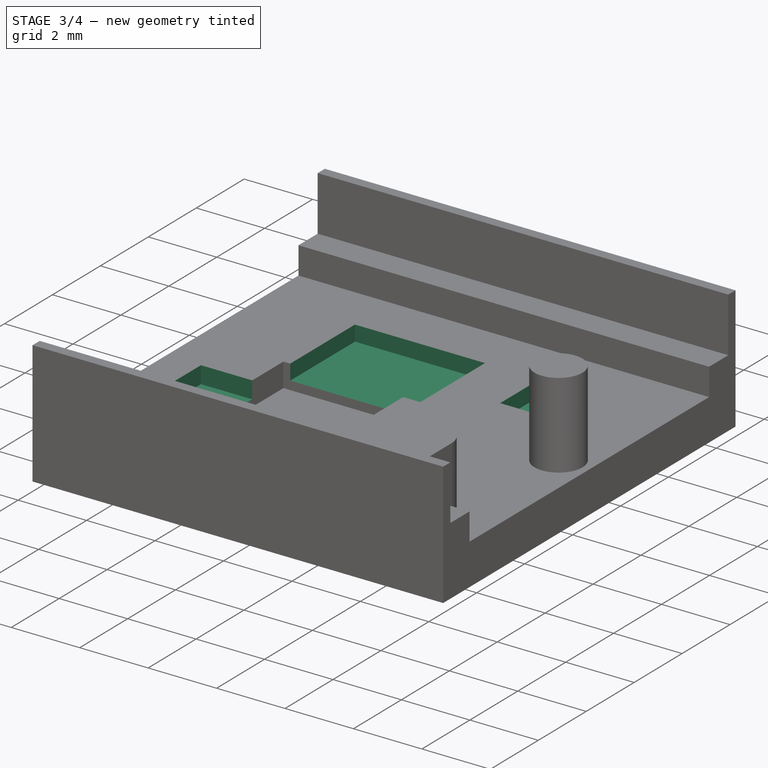
[diagram: stage 3 of 4 — iso view after this stage's code; geometry added in this stage tinted green]
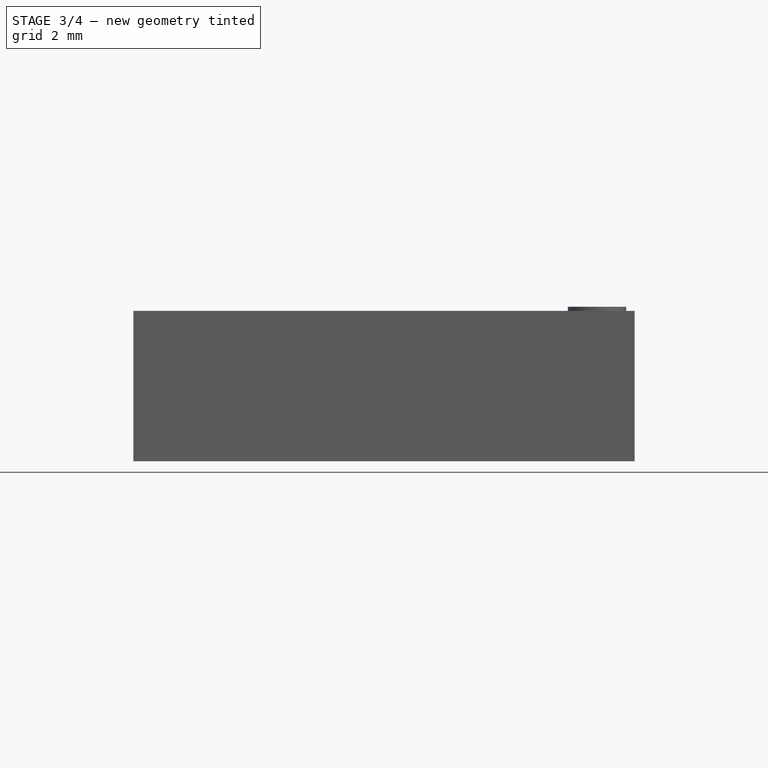
[diagram: stage 3 of 4 — front view after this stage's code; geometry added in this stage tinted green]
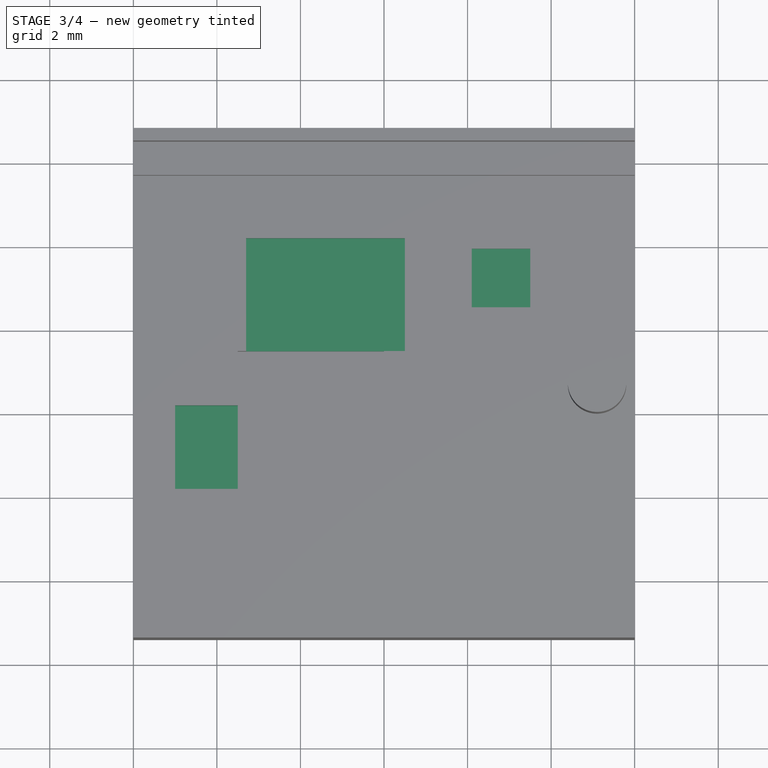
[diagram: stage 3 of 4 — top view after this stage's code; geometry added in this stage tinted green]
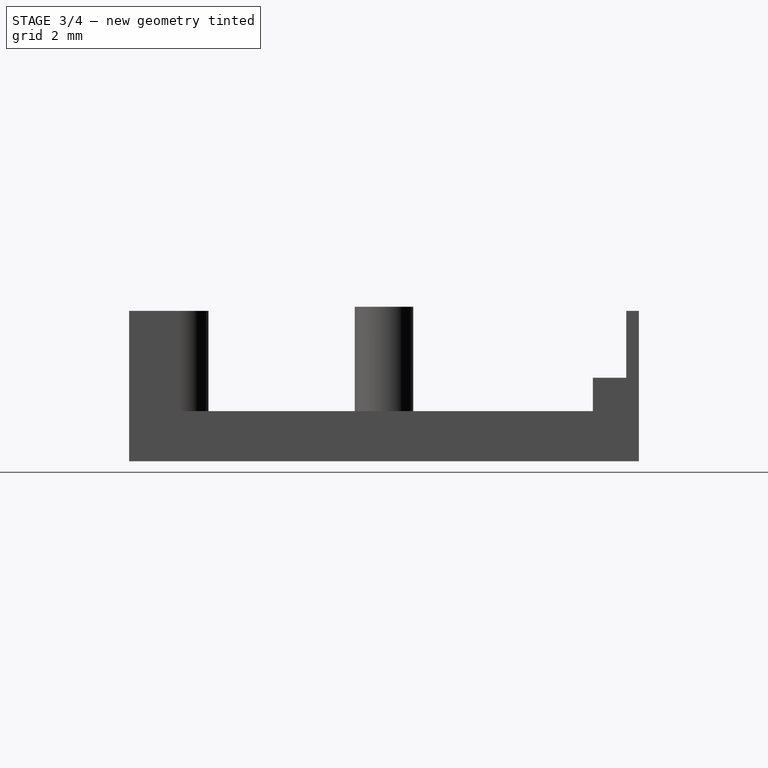
[diagram: stage 3 of 4 — right view after this stage's code; geometry added in this stage tinted green]
FEATURE [Sketcher::SketchObject] Sketch023  label="XTAL Sketch"
  MapMode = 5
  Placement = pos=(0,0,-0.8) rot=(0,0,1;0rad)
  Support = -> [Pocket]
  sketch-geometry (4):
    g0: LineSegment StartX=1 StartY=4.2 StartZ=0 EndX=2.5 EndY=4.2 EndZ=0
    g1: LineSegment StartX=2.5 StartY=4.2 StartZ=0 EndX=2.5 EndY=2.2 EndZ=0
    g2: LineSegment StartX=2.5 StartY=2.2 StartZ=0 EndX=1 EndY=2.2 EndZ=0
    g3: LineSegment StartX=1 StartY=2.2 StartZ=0 EndX=1 EndY=4.2 EndZ=0
  constraints (12):
    c: Coincident(g0,g1)
    c: Coincident(g1,g2)
    c: Coincident(g2,g3)
    c: Coincident(g3,g0)
    c: Horizontal(g0)
    c: Horizontal(g2)
    c: Vertical(g1)
    c: Vertical(g3)
    c: DistanceX(g-1,g2) = 1
    c: DistanceY(g-1,g2) = 2.2
    c: DistanceY(g3,g3) = 2
    c: DistanceX(g0,g0) = 1.5
FEATURE [PartDesign::Pocket] Pocket002  label="XTAL Pocket"
  BaseFeature = -> Pocket
  Length = 0.5
  Length2 = 100
  Profile = -> Sketch023
  Type = 0
FEATURE [Sketcher::SketchObject] Sketch024  label="Flash Sketch"
  MapMode = 5
  Placement = pos=(0,0,-0.8) rot=(0,0,1;0rad)
  Support = -> [Pocket002]
  sketch-geometry (4):
    g0: LineSegment StartX=2.7 StartY=8.2 StartZ=0 EndX=6.5 EndY=8.2 EndZ=0
    g1: LineSegment StartX=6.5 StartY=8.2 StartZ=0 EndX=6.5 EndY=5.5 EndZ=0
    g2: LineSegment StartX=6.5 StartY=5.5 StartZ=0 EndX=2.7 EndY=5.5 EndZ=0
    g3: LineSegment StartX=2.7 StartY=5.5 StartZ=0 EndX=2.7 EndY=8.2 EndZ=0
  constraints (12):
    c: Coincident(g0,g1)
    c: Coincident(g1,g2)
    c: Coincident(g2,g3)
    c: Coincident(g3,g0)
    c: Horizontal(g0)
    c: Horizontal(g2)
    c: Vertical(g1)
    c: Vertical(g3)
    c: DistanceY(g-1,g2) = 5.5
    c: DistanceX(g-1,g2) = 2.7
    c: DistanceX(g0,g0) = 3.8
    c: DistanceY(g1,g1) = 2.7
FEATURE [PartDesign::Pocket] Pocket003  label="Flash Pocket"
  BaseFeature = -> Pocket002
  Length = 0.45
  Length2 = 100
  Profile = -> Sketch024
  Type = 0
FEATURE [Sketcher::SketchObject] Sketch025  label="LED Sketch"
  MapMode = 5
  Placement = pos=(0,0,-0.8) rot=(0,0,1;0rad)
  Support = -> [Pocket003]
  sketch-geometry (4):
    g0: LineSegment StartX=8.1 StartY=7.95 StartZ=0 EndX=9.5 EndY=7.95 EndZ=0
    g1: LineSegment StartX=9.5 StartY=7.95 StartZ=0 EndX=9.5 EndY=6.55 EndZ=0
    g2: LineSegment StartX=9.5 StartY=6.55 StartZ=0 EndX=8.1 EndY=6.55 EndZ=0
    g3: LineSegment StartX=8.1 StartY=6.55 StartZ=0 EndX=8.1 EndY=7.95 EndZ=0
  constraints (12):
    c: Coincident(g0,g1)
    c: Coincident(g1,g2)
    c: Coincident(g2,g3)
    c: Coincident(g3,g0)
    c: Horizontal(g0)
    c: Horizontal(g2)
    c: Vertical(g1)
    c: Vertical(g3)
    c: DistanceX(g0,g0) = 1.4
    c: DistanceY(g1,g1) = 1.4
    c: DistanceX(g-1,g2) = 8.1
    c: DistanceY(g-1,g2) = 6.55
FEATURE [PartDesign::Pocket] Pocket004  label="LED Pocket"
  BaseFeature = -> Pocket003
  Length = 0.45
  Length2 = 100
  Profile = -> Sketch025
  Type = 0
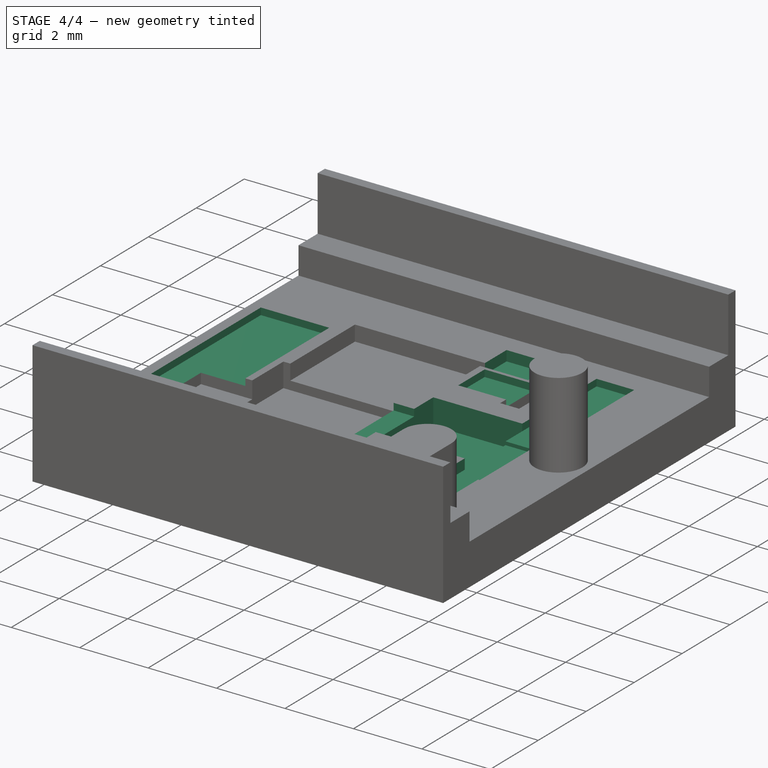
[diagram: stage 4 of 4 — iso view after this stage's code; geometry added in this stage tinted green]
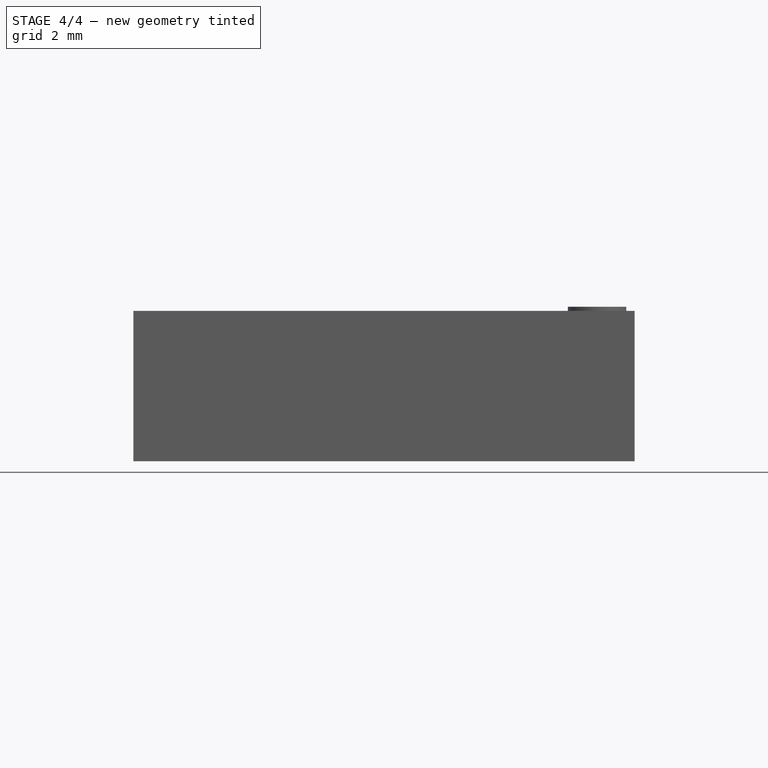
[diagram: stage 4 of 4 — front view after this stage's code; geometry added in this stage tinted green]
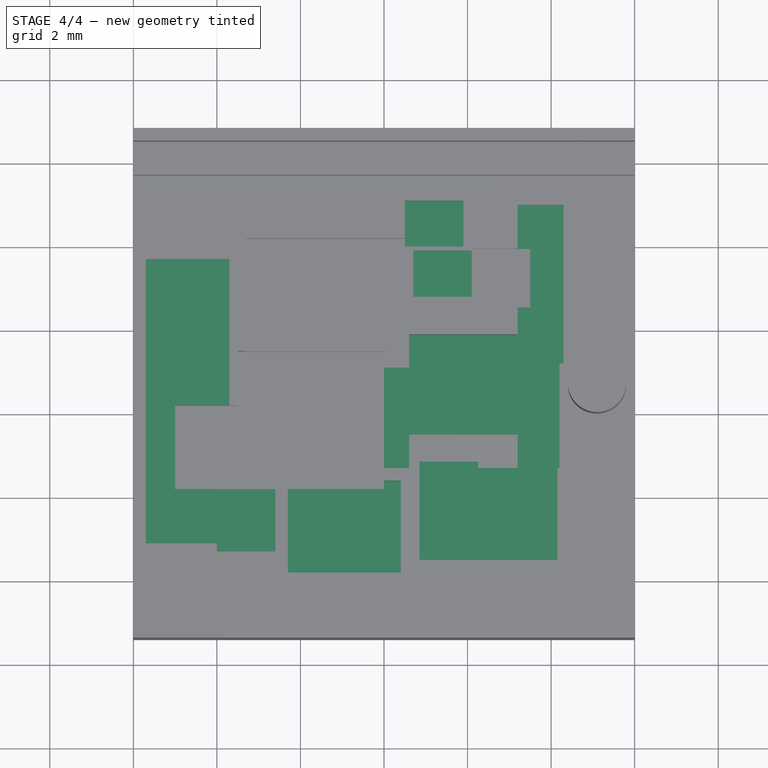
[diagram: stage 4 of 4 — top view after this stage's code; geometry added in this stage tinted green]
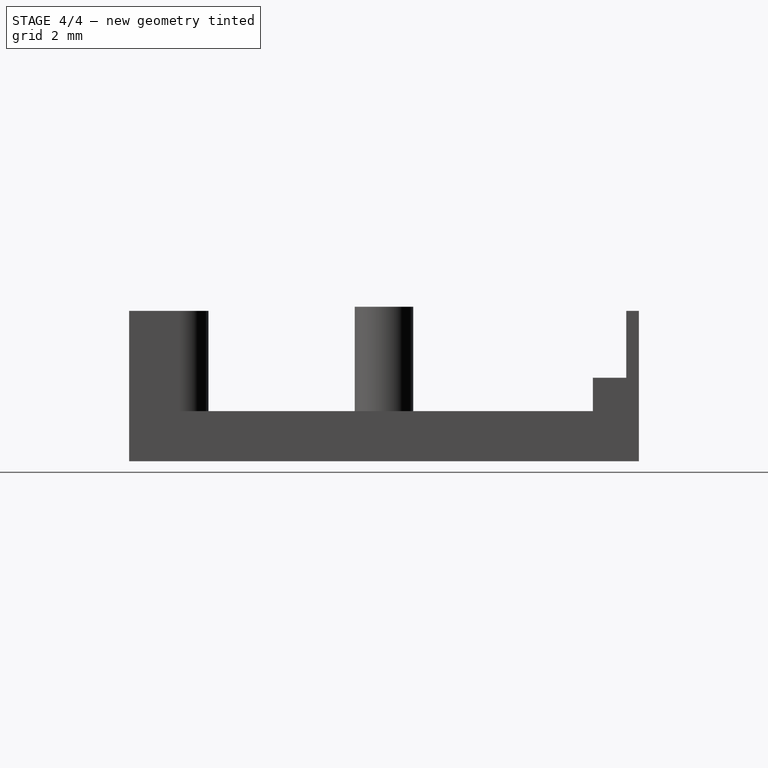
[diagram: stage 4 of 4 — right view after this stage's code; geometry added in this stage tinted green]
FEATURE [Sketcher::SketchObject] Sketch026  label="Reset Sketch"
  MapMode = 5
  Placement = pos=(0,0,-0.8) rot=(0,0,1;0rad)
  Support = -> [Pocket004]
  sketch-geometry (4):
    g0: LineSegment StartX=6.6 StartY=5.9 StartZ=0 EndX=9.2 EndY=5.9 EndZ=0
    g1: LineSegment StartX=9.2 StartY=5.9 StartZ=0 EndX=9.2 EndY=3.5 EndZ=0
    g2: LineSegment StartX=9.2 StartY=3.5 StartZ=0 EndX=6.6 EndY=3.5 EndZ=0
    g3: LineSegment StartX=6.6 StartY=3.5 StartZ=0 EndX=6.6 EndY=5.9 EndZ=0
  constraints (12):
    c: Coincident(g0,g1)
    c: Coincident(g1,g2)
    c: Coincident(g2,g3)
    c: Coincident(g3,g0)
    c: Horizontal(g0)
    c: Horizontal(g2)
    c: Vertical(g1)
    c: Vertical(g3)
    c: DistanceX(g-1,g2) = 6.6
    c: DistanceY(g-1,g2) = 3.5
    c: DistanceX(g0,g0) = 2.6
    c: DistanceY(g1,g1) = 2.4
FEATURE [PartDesign::Pocket] Pocket005  label="Reset Pocket"
  BaseFeature = -> Pocket004
  Length = 0.75
  Length2 = 100
  Profile = -> Sketch026
  Type = 0
FEATURE [Sketcher::SketchObject] Sketch027  label="FET Sketch"
  MapMode = 5
  Placement = pos=(0,0,-0.8) rot=(0,0,1;0rad)
  Support = -> [Pocket005]
  sketch-geometry (8):
    g0: LineSegment StartX=6.5 StartY=9.1 StartZ=0 EndX=7.9 EndY=9.1 EndZ=0
    g1: LineSegment StartX=7.9 StartY=9.1 StartZ=0 EndX=7.9 EndY=8 EndZ=0
    g2: LineSegment StartX=7.9 StartY=8 StartZ=0 EndX=6.5 EndY=8 EndZ=0
    g3: LineSegment StartX=6.5 StartY=8 StartZ=0 EndX=6.5 EndY=9.1 EndZ=0
    g4: LineSegment StartX=9.2 StartY=5.2 StartZ=0 EndX=10.2 EndY=5.2 EndZ=0
    g5: LineSegment StartX=10.2 StartY=5.2 StartZ=0 EndX=10.2 EndY=2.7 EndZ=0
    g6: LineSegment StartX=10.2 StartY=2.7 StartZ=0 EndX=9.2 EndY=2.7 EndZ=0
    g7: LineSegment StartX=9.2 StartY=2.7 StartZ=0 EndX=9.2 EndY=5.2 EndZ=0
  constraints (24):
    c: Coincident(g0,g1)
    c: Coincident(g1,g2)
    c: Coincident(g2,g3)
    c: Coincident(g3,g0)
    c: Horizontal(g0)
    c: Horizontal(g2)
    c: Vertical(g1)
    c: Vertical(g3)
    c: Coincident(g4,g5)
    c: Coincident(g5,g6)
    c: Coincident(g6,g7)
    c: Coincident(g7,g4)
    c: Horizontal(g4)
    c: Horizontal(g6)
    c: Vertical(g5)
    c: Vertical(g7)
    c: DistanceX(g-1,g2) = 6.5
    c: DistanceY(g-1,g2) = 8
    c: DistanceX(g0,g0) = 1.4
    c: DistanceY(g1,g1) = 1.1
    c: DistanceX(g-1,g6) = 9.2
    c: DistanceY(g-1,g6) = 2.7
    c: DistanceY(g5,g5) = 2.5
    c: DistanceX(g4,g4) = 1
FEATURE [PartDesign::Pocket] Pocket006  label="FET Pocket"
  BaseFeature = -> Pocket005
  Length = 0.3
  Length2 = 100
  Profile = -> Sketch027
  Type = 0
FEATURE [Sketcher::SketchObject] Sketch028  label="Reg Sketch"
  MapMode = 5
  Placement = pos=(0,0,-0.8) rot=(0,0,1;0rad)
  Support = -> [Pocket006]
  sketch-geometry (8):
    g0: LineSegment StartX=6.85 StartY=2.85 StartZ=0 EndX=8.25 EndY=2.85 EndZ=0
    g1: LineSegment StartX=8.25 StartY=2.85 StartZ=0 EndX=8.25 EndY=1.35 EndZ=0
    g2: LineSegment StartX=8.25 StartY=1.35 StartZ=0 EndX=6.85 EndY=1.35 EndZ=0
    g3: LineSegment StartX=6.85 StartY=1.35 StartZ=0 EndX=6.85 EndY=2.85 EndZ=0
    g4: LineSegment StartX=2 StartY=2.2 StartZ=0 EndX=3.4 EndY=2.2 EndZ=0
    g5: LineSegment StartX=3.4 StartY=2.2 StartZ=0 EndX=3.4 EndY=0.7 EndZ=0
    g6: LineSegment StartX=3.4 StartY=0.7 StartZ=0 EndX=2 EndY=0.7 EndZ=0
    g7: LineSegment StartX=2 StartY=0.7 StartZ=0 EndX=2 EndY=2.2 EndZ=0
  constraints (24):
    c: Coincident(g0,g1)
    c: Coincident(g1,g2)
    c: Coincident(g2,g3)
    c: Coincident(g3,g0)
    c: Horizontal(g0)
    c: Horizontal(g2)
    c: Vertical(g1)
    c: Vertical(g3)
    c: Coincident(g4,g5)
    c: Coincident(g5,g6)
    c: Coincident(g6,g7)
    c: Coincident(g7,g4)
    c: Horizontal(g4)
    c: Horizontal(g6)
    c: Vertical(g5)
    c: Vertical(g7)
    c: DistanceX(g-1,g6) = 2
    c: DistanceY(g-1,g6) = 0.7
    c: DistanceX(g6,g6) = 1.4
    c: DistanceY(g7,g7) = 1.5
    c: Equal(g3,g7)
    c: Equal(g2,g6)
    c: DistanceX(g-1,g2) = 6.85
    c: DistanceY(g-1,g2) = 1.35
FEATURE [PartDesign::Pocket] Pocket007  label="Reg Pocket"
  BaseFeature = -> Pocket006
  Length = 0.25
  Length2 = 100
  Profile = -> Sketch028
  Type = 0
FEATURE [Sketcher::SketchObject] Sketch029  label="Passives Sketch"
  MapMode = 5
  Placement = pos=(0,0,-0.8) rot=(0,0,1;0rad)
  Support = -> [Pocket007]
  sketch-geometry (24):
    g0: LineSegment StartX=10.3 StartY=9 StartZ=0 EndX=9.2 EndY=9 EndZ=0
    g1: LineSegment StartX=9.2 StartY=9 StartZ=0 EndX=9.2 EndY=5.2 EndZ=0
    g2: LineSegment StartX=9.2 StartY=5.2 StartZ=0 EndX=10.3 EndY=5.2 EndZ=0
    g3: LineSegment StartX=10.3 StartY=5.2 StartZ=0 EndX=10.3 EndY=9 EndZ=0
    g4: LineSegment StartX=8.1 StartY=7.9 StartZ=0 EndX=6.7 EndY=7.9 EndZ=0
    g5: LineSegment StartX=6.7 StartY=7.9 StartZ=0 EndX=6.7 EndY=6.8 EndZ=0
    g6: LineSegment StartX=6.7 StartY=6.8 StartZ=0 EndX=8.1 EndY=6.8 EndZ=0
    g7: LineSegment StartX=8.1 StartY=6.8 StartZ=0 EndX=8.1 EndY=7.9 EndZ=0
    g8: LineSegment StartX=6.6 StartY=5.1 StartZ=0 EndX=5.8 EndY=5.1 EndZ=0
    g9: LineSegment StartX=5.8 StartY=5.1 StartZ=0 EndX=5.8 EndY=2.7 EndZ=0
    g10: LineSegment StartX=5.8 StartY=2.7 StartZ=0 EndX=6.6 EndY=2.7 EndZ=0
    g11: LineSegment StartX=6.6 StartY=2.7 StartZ=0 EndX=6.6 EndY=5.1 EndZ=0
    g12: LineSegment StartX=3.7 StartY=2.4 StartZ=0 EndX=6.4 EndY=2.4 EndZ=0
    g13: LineSegment StartX=6.4 StartY=2.4 StartZ=0 EndX=6.4 EndY=0.2 EndZ=0
    g14: LineSegment StartX=6.4 StartY=0.2 StartZ=0 EndX=3.7 EndY=0.2 EndZ=0
    g15: LineSegment StartX=3.7 StartY=0.2 StartZ=0 EndX=3.7 EndY=2.4 EndZ=0
    g16: LineSegment StartX=0.3 StartY=7.7 StartZ=0 EndX=2.3 EndY=7.7 EndZ=0
    g17: LineSegment StartX=2.3 StartY=7.7 StartZ=0 EndX=2.3 EndY=0.9 EndZ=0
    g18: LineSegment StartX=2.3 StartY=0.9 StartZ=0 EndX=0.3 EndY=0.9 EndZ=0
    g19: LineSegment StartX=0.3 StartY=0.9 StartZ=0 EndX=0.3 EndY=7.7 EndZ=0
    g20: LineSegment StartX=10.15 StartY=2.7 StartZ=0 EndX=6.85 EndY=2.7 EndZ=0
    g21: LineSegment StartX=6.85 StartY=2.7 StartZ=0 EndX=6.85 EndY=0.5 EndZ=0
    g22: LineSegment StartX=6.85 StartY=0.5 StartZ=0 EndX=10.15 EndY=0.5 EndZ=0
    g23: LineSegment StartX=10.15 StartY=0.5 StartZ=0 EndX=10.15 EndY=2.7 EndZ=0
  constraints (72):
    c: Coincident(g0,g1)
    c: Coincident(g1,g2)
    c: Coincident(g2,g3)
    c: Coincident(g3,g0)
    c: Horizontal(g0)
    c: Horizontal(g2)
    c: Vertical(g1)
    c: Vertical(g3)
    c: Coincident(g4,g5)
    c: Coincident(g5,g6)
    c: Coincident(g6,g7)
    c: Coincident(g7,g4)
    c: Horizontal(g4)
    c: Horizontal(g6)
    c: Vertical(g5)
    c: Vertical(g7)
    c: Coincident(g8,g9)
    c: Coincident(g9,g10)
    c: Coincident(g10,g11)
    c: Coincident(g11,g8)
    c: Horizontal(g8)
    c: Horizontal(g10)
    c: Vertical(g9)
    c: Vertical(g11)
    c: Coincident(g12,g13)
    c: Coincident(g13,g14)
    c: Coincident(g14,g15)
    c: Coincident(g15,g12)
    c: Horizontal(g12)
    c: Horizontal(g14)
    c: Vertical(g13)
    c: Vertical(g15)
    c: Coincident(g16,g17)
    c: Coincident(g17,g18)
    c: Coincident(g18,g19)
    c: Coincident(g19,g16)
    c: Horizontal(g16)
    c: Horizontal(g18)
    c: Vertical(g17)
    c: Vertical(g19)
    c: Coincident(g20,g21)
    c: Coincident(g21,g22)
    c: Coincident(g22,g23)
    c: Coincident(g23,g20)
    c: Horizontal(g20)
    c: Horizontal(g22)
    c: Vertical(g21)
    c: Vertical(g23)
    c: DistanceX(g-1,g5) = 6.7
    c: DistanceY(g-1,g5) = 6.8
    c: DistanceY(g5,g5) = 1.1
    c: DistanceX(g4,g4) = 1.4
    c: DistanceX(g-1,g1) = 9.2
    c: DistanceY(g-1,g1) = 5.2
    c: DistanceX(g0,g0) = 1.1
    c: DistanceY(g3,g3) = 3.8
    c: DistanceX(g-1,g21) = 6.85
    c: DistanceY(g-1,g21) = 0.5
    c: DistanceX(g22,g22) = 3.3
    c: DistanceY(g23,g23) = 2.2
    c: DistanceX(g-1,g14) = 3.7
    c: DistanceY(g-1,g14) = 0.2
    c: DistanceX(g12,g12) = 2.7
    c: DistanceY(g15,g15) = 2.2
    c: DistanceX(g-1,g18) = 0.3
    c: DistanceY(g-1,g18) = 0.9
    c: DistanceX(g18,g18) = 2
    c: DistanceY(g19,g19) = 6.8
    c: DistanceX(g-1,g9) = 5.8
    c: DistanceY(g-1,g9) = 2.7
    c: DistanceX(g10,g10) = 0.8
    c: DistanceY(g9,g9) = 2.4
FEATURE [PartDesign::Pocket] Pocket008  label="Passives Pocket"
  BaseFeature = -> Pocket007
  Length = 0.2
  Length2 = 100
  Profile = -> Sketch029
  Type = 0
FEATURE [PartDesign::Body] Body009  label="Case"
  Group = -> [Sketch017,Pad013,Sketch018,Pocket001,Sketch019,Pad014,Sketch020,Pad015,Sketch021,Pad016,Sketch022,Pad017,Sketch,Pocket,Sketch023,Pocket002,Sketch024,Pocket003,Sketch025,Pocket004,Sketch026,Pocket005,Sketch027,Pocket006,Sketch028,Pocket007,Sketch029,Pocket008]
  Origin = -> Origin015
  Tip = -> Pocket008
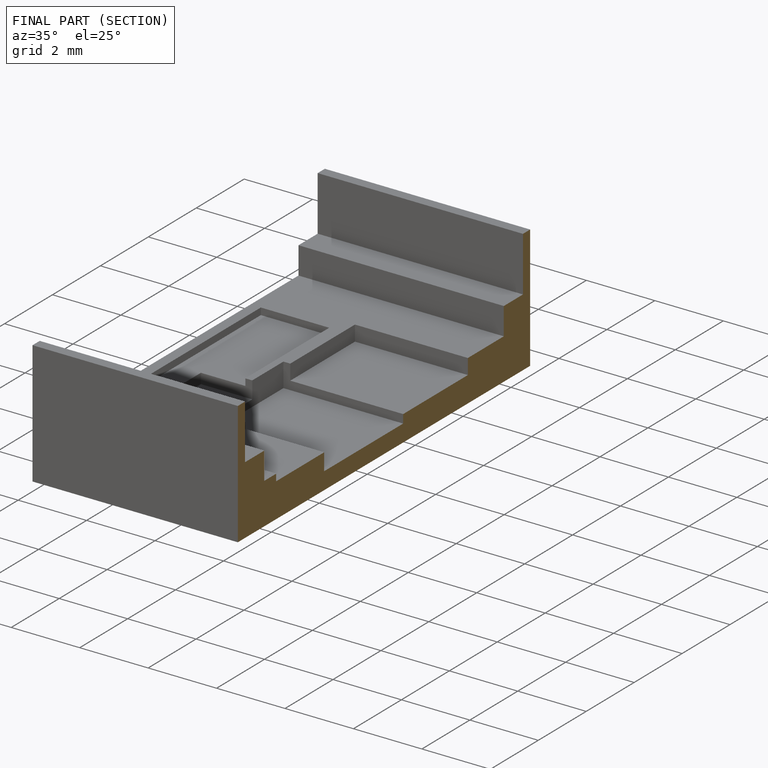
[diagram: finished part — half-section view (interior)]
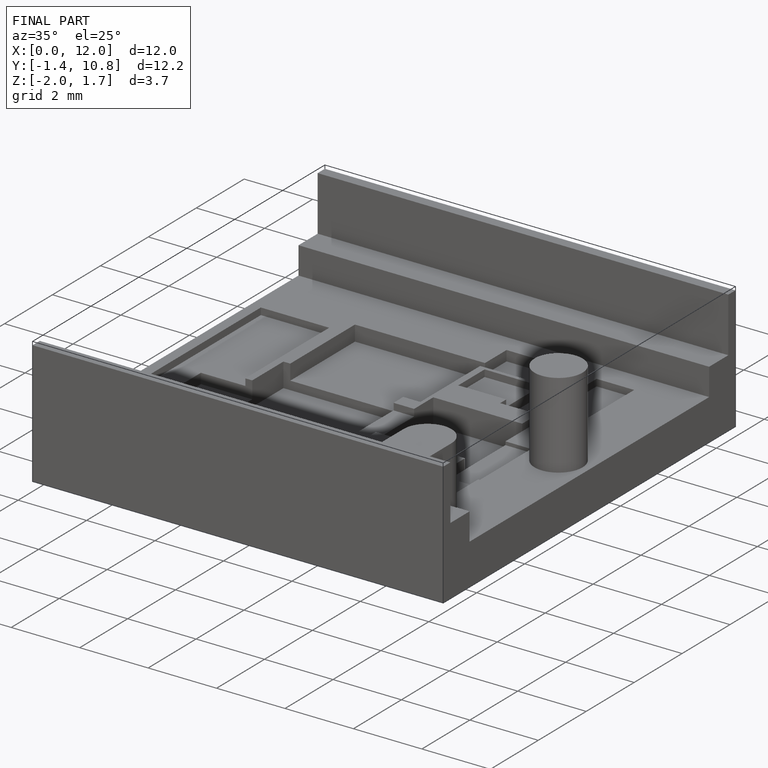
[diagram: finished part — iso view with bounding-box wireframe]
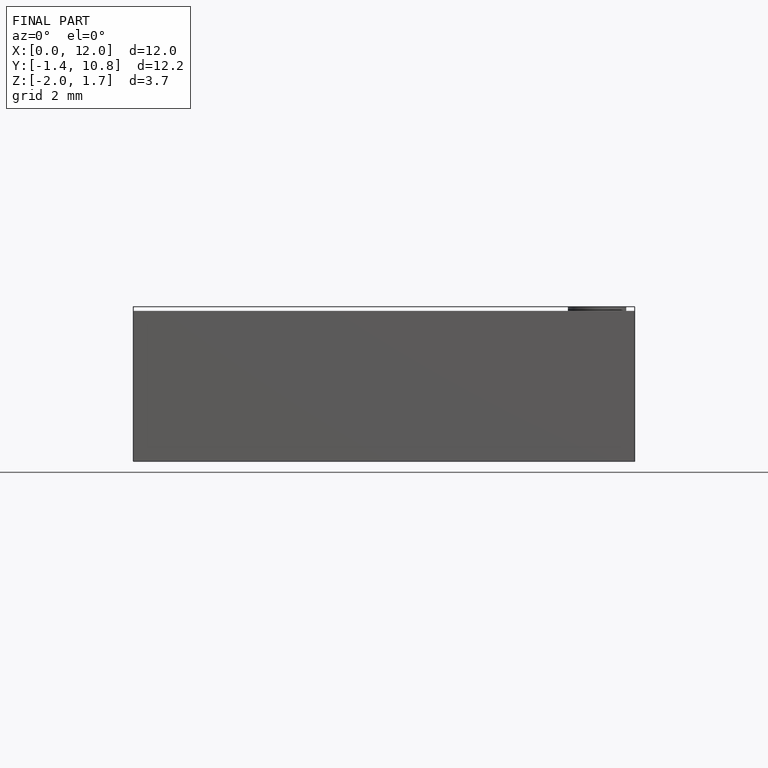
[diagram: finished part — front view with bounding-box wireframe]
